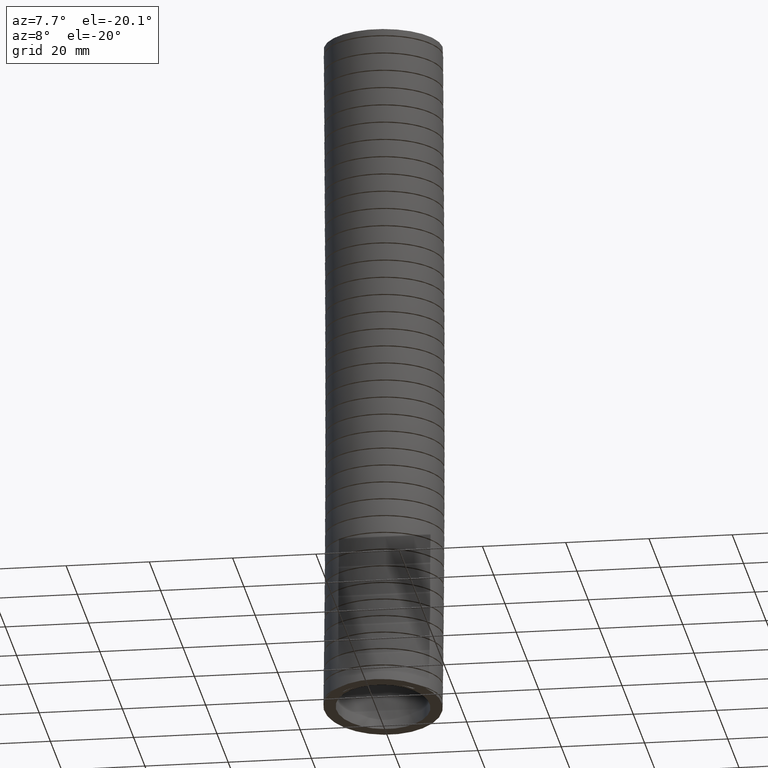
[diagram: clean part render]
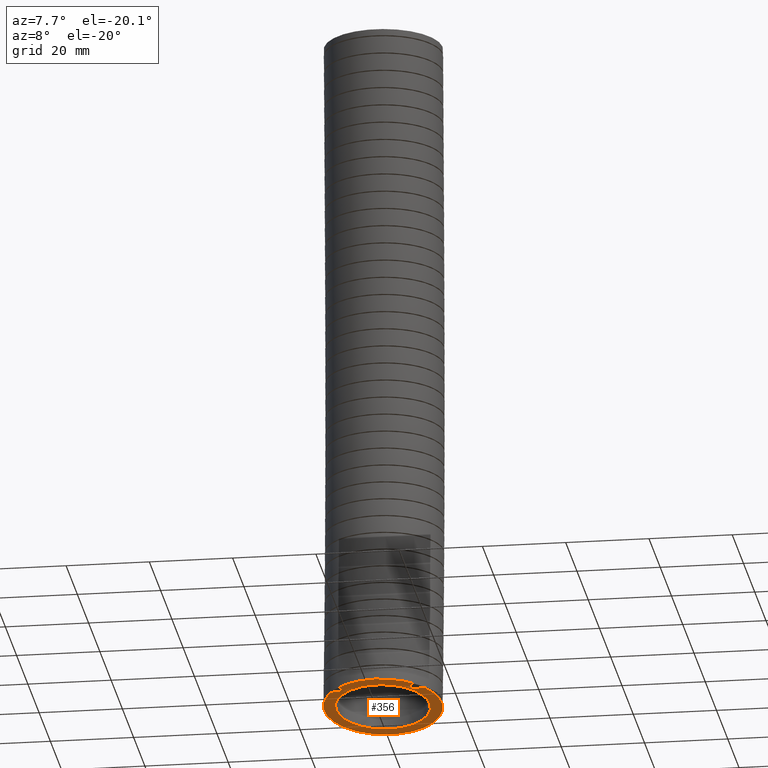
[diagram: same view with one face highlighted and labeled with its STEP entity id]
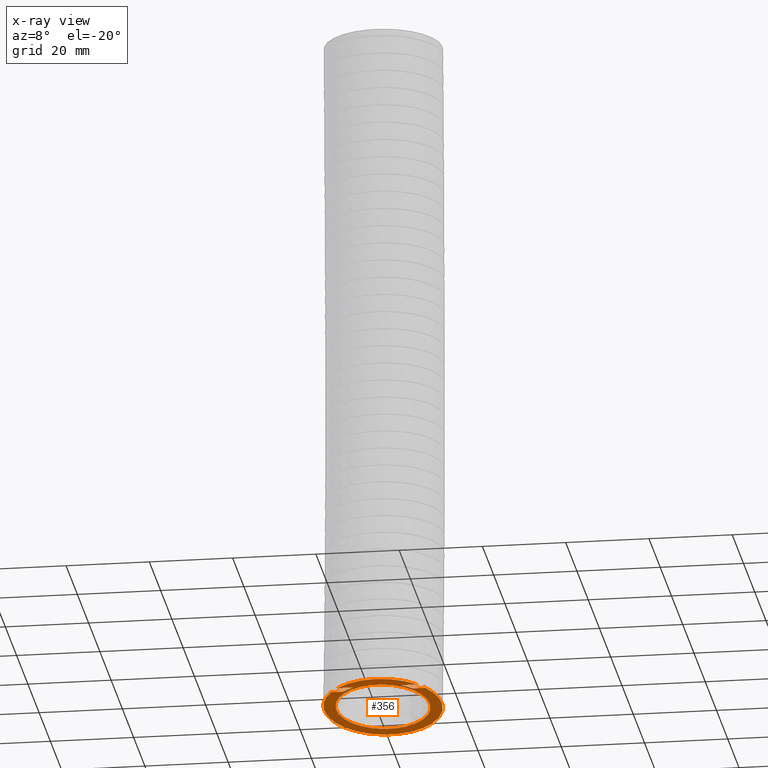
[diagram: x-ray of the same camera — body ghosted, the highlighted face saturated]
A machine part, auxiliary view. The second image highlights one B-rep face of the part: STEP entity #356.
The next image is the same camera in x-ray: the body ghosted, the highlighted face saturated — about 0% of this face is hidden behind the body in this view.
In plain terms, the highlighted planar face has unit normal (0, 0.1357, 0.9908).
Its self-contained STEP definition (entity closure, byte-faithful):
#160 = EDGE_CURVE ( 'NONE', #171, #184, #14817, .T. ) ;
#171 = VERTEX_POINT ( 'NONE', #15006 ) ;
#184 = VERTEX_POINT ( 'NONE', #15102 ) ;
#237 = EDGE_CURVE ( 'NONE', #241, #171, #15636, .T. ) ;
#241 = VERTEX_POINT ( 'NONE', #15630 ) ;
#274 = VERTEX_POINT ( 'NONE', #15730 ) ;
#277 = VERTEX_POINT ( 'NONE', #15710 ) ;
#279 = EDGE_CURVE ( 'NONE', #277, #274, #15728, .T. ) ;
#290 = VERTEX_POINT ( 'NONE', #15795 ) ;
#330 = ORIENTED_EDGE ( 'NONE', *, *, #336, .F. ) ;
#331 = VERTEX_POINT ( 'NONE', #16062 ) ;
#335 = VERTEX_POINT ( 'NONE', #16061 ) ;
#336 = EDGE_CURVE ( 'NONE', #335, #277, #16060, .T. ) ;
#338 = EDGE_CURVE ( 'NONE', #331, #335, #16055, .T. ) ;
#339 = ORIENTED_EDGE ( 'NONE', *, *, #338, .F. ) ;
#349 = ORIENTED_EDGE ( 'NONE', *, *, #350, .T. ) ;
#350 = EDGE_CURVE ( 'NONE', #593, #704, #16122, .T. ) ;
#352 = EDGE_LOOP ( 'NONE', ( #330, #339, #1703, #1707, #1698, #1699, #1700, #3000, #367, #1717 ) ) ;
#353 = EDGE_LOOP ( 'NONE', ( #354, #349 ) ) ;
#354 = ORIENTED_EDGE ( 'NONE', *, *, #753, .T. ) ;
#356 = ADVANCED_FACE ( 'NONE', ( #16147, #16146 ), #16204, .F. ) ;
#359 = EDGE_CURVE ( 'NONE', #290, #241, #16199, .T. ) ;
#367 = ORIENTED_EDGE ( 'NONE', *, *, #1715, .F. ) ;
#593 = VERTEX_POINT ( 'NONE', #17431 ) ;
#704 = VERTEX_POINT ( 'NONE', #19009 ) ;
#753 = EDGE_CURVE ( 'NONE', #704, #593, #19795, .T. ) ;
#1698 = ORIENTED_EDGE ( 'NONE', *, *, #237, .F. ) ;
#1699 = ORIENTED_EDGE ( 'NONE', *, *, #359, .F. ) ;
#1700 = ORIENTED_EDGE ( 'NONE', *, *, #1701, .F. ) ;
#1701 = EDGE_CURVE ( 'NONE', #2894, #290, #6618, .T. ) ;
#1703 = ORIENTED_EDGE ( 'NONE', *, *, #1704, .F. ) ;
#1704 = EDGE_CURVE ( 'NONE', #184, #331, #6608, .T. ) ;
#1707 = ORIENTED_EDGE ( 'NONE', *, *, #160, .F. ) ;
#1715 = EDGE_CURVE ( 'NONE', #274, #2838, #6762, .T. ) ;
#1717 = ORIENTED_EDGE ( 'NONE', *, *, #279, .F. ) ;
#2833 = EDGE_CURVE ( 'NONE', #2838, #2894, #7786, .T. ) ;
#2838 = VERTEX_POINT ( 'NONE', #7788 ) ;
#2894 = VERTEX_POINT ( 'NONE', #7787 ) ;
#3000 = ORIENTED_EDGE ( 'NONE', *, *, #2833, .F. ) ;
#6605 = DIRECTION ( 'NONE',  ( 1.000000000000000000, 0.0000000000000000000, 0.0000000000000000000 ) ) ;
#6606 = VECTOR ( 'NONE', #6605, 39.37007874015748100 ) ;
#6607 = CARTESIAN_POINT ( 'NONE',  ( 0.0000000000000000000, -0.3664054502746098600, -6.523937753082340600 ) ) ;
#6608 = LINE ( 'NONE', #6607, #6606 ) ;
#6615 = DIRECTION ( 'NONE',  ( 1.000000000000000000, 0.0000000000000000000, 0.0000000000000000000 ) ) ;
#6616 = VECTOR ( 'NONE', #6615, 39.37007874015748100 ) ;
#6617 = CARTESIAN_POINT ( 'NONE',  ( 0.0000000000000000000, -0.3664054502746098600, -6.523937753082340600 ) ) ;
#6618 = LINE ( 'NONE', #6617, #6616 ) ;
#6759 = DIRECTION ( 'NONE',  ( -1.000000000000000000, 0.0000000000000000000, 0.0000000000000000000 ) ) ;
#6760 = VECTOR ( 'NONE', #6759, 39.37007874015748100 ) ;
#6761 = CARTESIAN_POINT ( 'NONE',  ( 0.0000000000000000000, -0.4394382423735200800, -6.513937753082340800 ) ) ;
#6762 = LINE ( 'NONE', #6761, #6760 ) ;
#7782 = CARTESIAN_POINT ( 'NONE',  ( 0.3263742884761909900, -0.3664054502746098600, -6.523937753082340600 ) ) ;
#7783 = CARTESIAN_POINT ( 'NONE',  ( 0.2967337270156157300, -0.3950095084287155200, -6.520021148317270300 ) ) ;
#7784 = CARTESIAN_POINT ( 'NONE',  ( 0.2636086035913824400, -0.4194938141103339300, -6.516668639810067300 ) ) ;
#7785 = CARTESIAN_POINT ( 'NONE',  ( 0.2275673104980936700, -0.4394382423735173600, -6.513937753082340800 ) ) ;
#7786 =( BOUNDED_CURVE ( )  B_SPLINE_CURVE ( 3, ( #7785, #7784, #7783, #7782 ),
 .UNSPECIFIED., .F., .T. ) 
 B_SPLINE_CURVE_WITH_KNOTS ( ( 4, 4 ),
 ( 0.5054323388444148500, 0.7676043496765478900 ),
 .UNSPECIFIED. ) 
 CURVE ( )  GEOMETRIC_REPRESENTATION_ITEM ( )  RATIONAL_B_SPLINE_CURVE ( ( 1.000000000000000000, 0.9942803504224193600, 0.9942803504224193600, 1.000000000000000000 ) ) 
 REPRESENTATION_ITEM ( '' )  );
#7787 = CARTESIAN_POINT ( 'NONE',  ( 0.3263742884761909900, -0.3664054502746098600, -6.523937753082340600 ) ) ;
#7788 = CARTESIAN_POINT ( 'NONE',  ( 0.2275673104980936700, -0.4394382423735173600, -6.513937753082340800 ) ) ;
#14809 = DIRECTION ( 'NONE',  ( 1.000000000000000000, 0.0000000000000000000, 0.0000000000000000000 ) ) ;
#14811 = DIRECTION ( 'NONE',  ( 0.0000000000000000000, 0.1356590045631726700, 0.9907555876607151400 ) ) ;
#14813 = CARTESIAN_POINT ( 'NONE',  ( 0.0000000000000000000, -0.03000000000000005400, -6.570000000000001200 ) ) ;
#14815 = AXIS2_PLACEMENT_3D ( 'NONE', #14813, #14811, #14809 ) ;
#14817 = CIRCLE ( 'NONE', #14815, 0.5600000000000000500 ) ;
#15006 = CARTESIAN_POINT ( 'NONE',  ( -0.5600000000000000500, -0.02999999999999997800, -6.570000000000001200 ) ) ;
#15102 = CARTESIAN_POINT ( 'NONE',  ( -0.4453197081361423000, -0.3664054502450291300, -6.523937753082340600 ) ) ;
#15337 = DIRECTION ( 'NONE',  ( 1.000000000000000000, 0.0000000000000000000, 0.0000000000000000000 ) ) ;
#15630 = CARTESIAN_POINT ( 'NONE',  ( 0.5600000000000000500, -0.03000000000000004700, -6.570000000000001200 ) ) ;
#15632 = DIRECTION ( 'NONE',  ( 1.000000000000000000, 0.0000000000000000000, 0.0000000000000000000 ) ) ;
#15633 = DIRECTION ( 'NONE',  ( 0.0000000000000000000, 0.1356590045631726700, 0.9907555876607151400 ) ) ;
#15634 = CARTESIAN_POINT ( 'NONE',  ( 0.0000000000000000000, -0.03000000000000005400, -6.570000000000001200 ) ) ;
#15635 = AXIS2_PLACEMENT_3D ( 'NONE', #15634, #15633, #15632 ) ;
#15636 = CIRCLE ( 'NONE', #15635, 0.5600000000000000500 ) ;
#15710 = CARTESIAN_POINT ( 'NONE',  ( -0.3779118285428837400, -0.4394382423735202500, -6.513937753082340800 ) ) ;
#15725 = DIRECTION ( 'NONE',  ( 0.0000000000000000000, 0.1356590045631726700, 0.9907555876607151400 ) ) ;
#15726 = CARTESIAN_POINT ( 'NONE',  ( 0.0000000000000000000, -0.03000000000000005400, -6.570000000000001200 ) ) ;
#15727 = AXIS2_PLACEMENT_3D ( 'NONE', #15726, #15725, #15337 ) ;
#15728 = CIRCLE ( 'NONE', #15727, 0.5600000000000000500 ) ;
#15730 = CARTESIAN_POINT ( 'NONE',  ( 0.3779118285750461800, -0.4394382423440172900, -6.513937753082340800 ) ) ;
#15795 = CARTESIAN_POINT ( 'NONE',  ( 0.4453197081136580100, -0.3664054502746100200, -6.523937753082340600 ) ) ;
#16053 = CARTESIAN_POINT ( 'NONE',  ( -0.2967337270156157300, -0.3950095084287155200, -6.520021148317270300 ) ) ;
#16054 = CARTESIAN_POINT ( 'NONE',  ( -0.3263742884761909900, -0.3664054502746098600, -6.523937753082340600 ) ) ;
#16055 =( BOUNDED_CURVE ( )  B_SPLINE_CURVE ( 3, ( #16054, #16053, #16098, #16097 ),
 .UNSPECIFIED., .F., .T. ) 
 B_SPLINE_CURVE_WITH_KNOTS ( ( 4, 4 ),
 ( 5.515580957503038600, 5.777752968335171600 ),
 .UNSPECIFIED. ) 
 CURVE ( )  GEOMETRIC_REPRESENTATION_ITEM ( )  RATIONAL_B_SPLINE_CURVE ( ( 1.000000000000000000, 0.9942803504224193600, 0.9942803504224193600, 1.000000000000000000 ) ) 
 REPRESENTATION_ITEM ( '' )  );
#16057 = DIRECTION ( 'NONE',  ( -1.000000000000000000, 0.0000000000000000000, 0.0000000000000000000 ) ) ;
#16058 = VECTOR ( 'NONE', #16057, 39.37007874015748100 ) ;
#16059 = CARTESIAN_POINT ( 'NONE',  ( 0.0000000000000000000, -0.4394382423735200800, -6.513937753082340800 ) ) ;
#16060 = LINE ( 'NONE', #16059, #16058 ) ;
#16061 = CARTESIAN_POINT ( 'NONE',  ( -0.2275673104980936700, -0.4394382423735173600, -6.513937753082340800 ) ) ;
#16062 = CARTESIAN_POINT ( 'NONE',  ( -0.3263742884761909900, -0.3664054502746098600, -6.523937753082340600 ) ) ;
#16097 = CARTESIAN_POINT ( 'NONE',  ( -0.2275673104980936700, -0.4394382423735173600, -6.513937753082340800 ) ) ;
#16098 = CARTESIAN_POINT ( 'NONE',  ( -0.2636086035913824400, -0.4194938141103339300, -6.516668639810067300 ) ) ;
#16119 = DIRECTION ( 'NONE',  ( 1.000000000000000000, 0.0000000000000000000, 0.0000000000000000000 ) ) ;
#16120 = DIRECTION ( 'NONE',  ( 0.0000000000000000000, 0.1356590045631726700, 0.9907555876607151400 ) ) ;
#16121 = AXIS2_PLACEMENT_3D ( 'NONE', #16127, #16120, #16119 ) ;
#16122 = CIRCLE ( 'NONE', #16121, 0.4450000000000000100 ) ;
#16127 = CARTESIAN_POINT ( 'NONE',  ( 0.0000000000000000000, -0.03000000000000005400, -6.570000000000001200 ) ) ;
#16146 = FACE_OUTER_BOUND ( 'NONE', #352, .T. ) ;
#16147 = FACE_BOUND ( 'NONE', #353, .T. ) ;
#16195 = DIRECTION ( 'NONE',  ( 1.000000000000000000, 0.0000000000000000000, 0.0000000000000000000 ) ) ;
#16196 = DIRECTION ( 'NONE',  ( 0.0000000000000000000, 0.1356590045631726700, 0.9907555876607151400 ) ) ;
#16197 = CARTESIAN_POINT ( 'NONE',  ( 0.0000000000000000000, -0.03000000000000005400, -6.570000000000001200 ) ) ;
#16198 = AXIS2_PLACEMENT_3D ( 'NONE', #16197, #16196, #16195 ) ;
#16199 = CIRCLE ( 'NONE', #16198, 0.5600000000000000500 ) ;
#16200 = DIRECTION ( 'NONE',  ( 1.000000000000000000, 0.0000000000000000000, 0.0000000000000000000 ) ) ;
#16201 = DIRECTION ( 'NONE',  ( 0.0000000000000000000, 0.1356590045631726700, 0.9907555876607152500 ) ) ;
#16202 = CARTESIAN_POINT ( 'NONE',  ( 0.0000000000000000000, -0.03000000000000005400, -6.570000000000001200 ) ) ;
#16203 = AXIS2_PLACEMENT_3D ( 'NONE', #16202, #16201, #16200 ) ;
#16204 = PLANE ( 'NONE',  #16203 ) ;
#17431 = CARTESIAN_POINT ( 'NONE',  ( -0.4450000000000000100, -0.02999999999999999200, -6.570000000000001200 ) ) ;
#19009 = CARTESIAN_POINT ( 'NONE',  ( 0.4450000000000000100, -0.03000000000000005400, -6.570000000000001200 ) ) ;
#19795 = CIRCLE ( 'NONE', #19826, 0.4450000000000000100 ) ;
#19823 = DIRECTION ( 'NONE',  ( 1.000000000000000000, 0.0000000000000000000, 0.0000000000000000000 ) ) ;
#19824 = DIRECTION ( 'NONE',  ( 0.0000000000000000000, 0.1356590045631726700, 0.9907555876607151400 ) ) ;
#19825 = CARTESIAN_POINT ( 'NONE',  ( 0.0000000000000000000, -0.03000000000000005400, -6.570000000000001200 ) ) ;
#19826 = AXIS2_PLACEMENT_3D ( 'NONE', #19825, #19824, #19823 ) ;